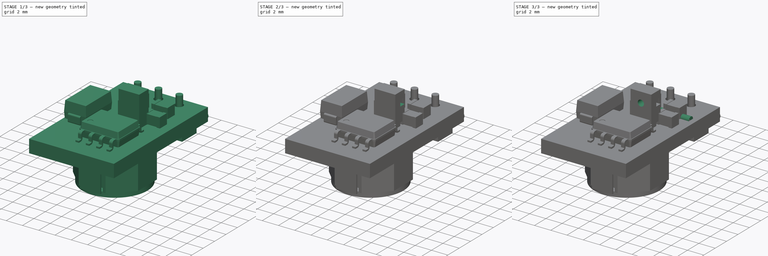
[diagram: build sequence overview — one tinted view per stage of 3, left to right]
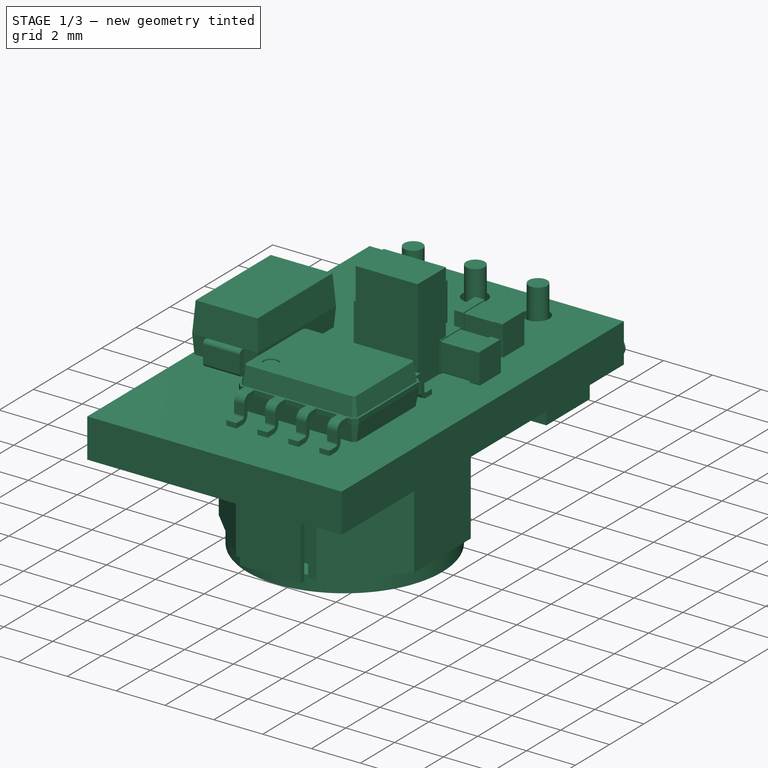
[diagram: stage 1 of 3 — iso view after this stage's code; geometry added in this stage tinted green]
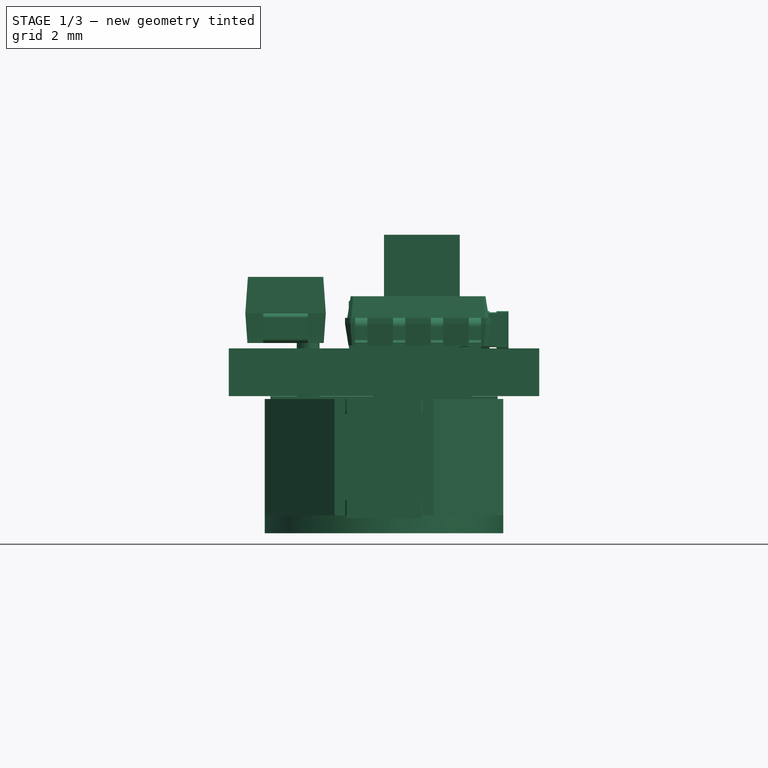
[diagram: stage 1 of 3 — front view after this stage's code; geometry added in this stage tinted green]
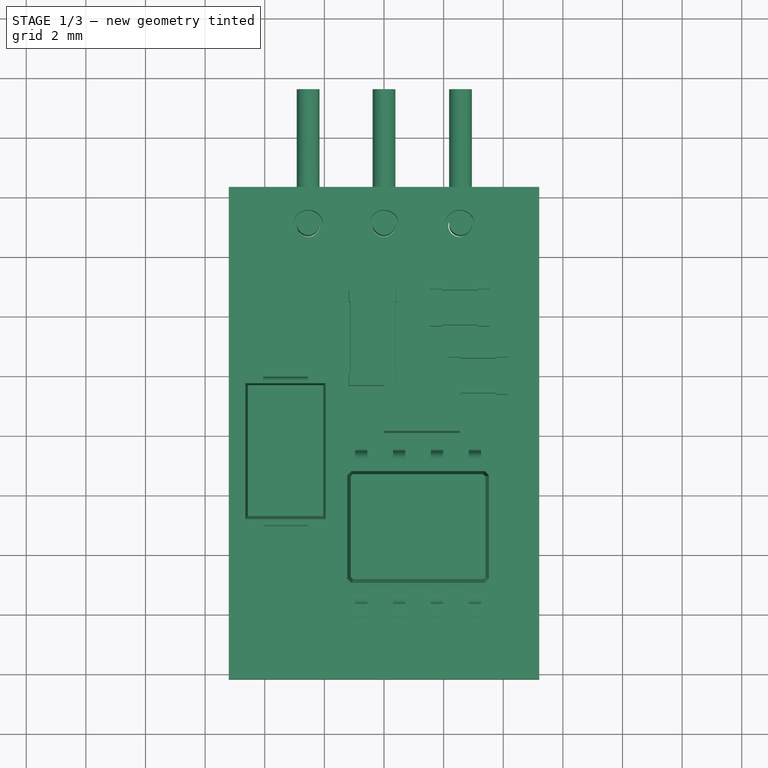
[diagram: stage 1 of 3 — top view after this stage's code; geometry added in this stage tinted green]
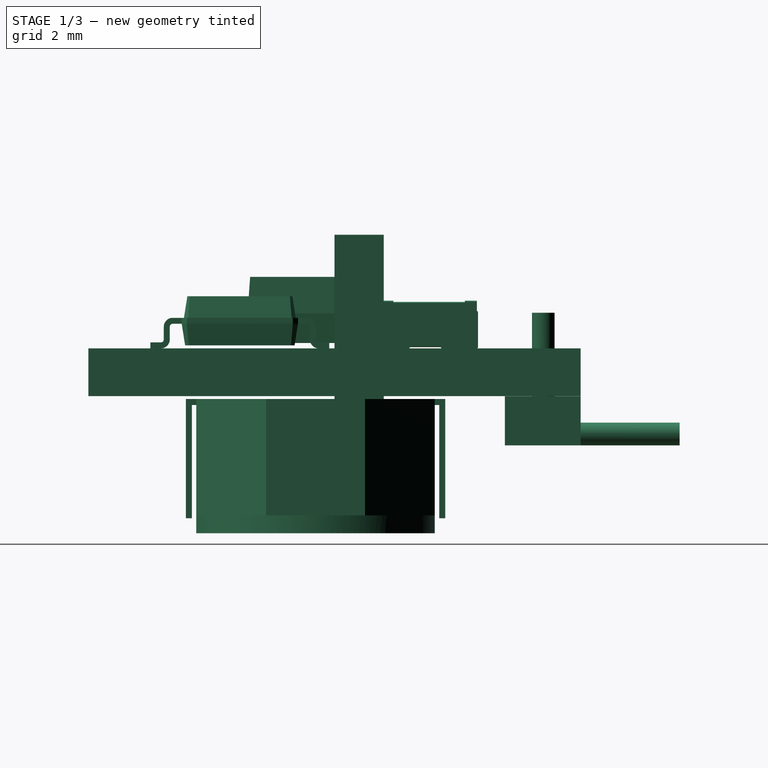
[diagram: stage 1 of 3 — right view after this stage's code; geometry added in this stage tinted green]
FCSTD DOCUMENT  (FreeCAD 0.17R13528 (Git))
Label: OKI_78SR_vertical
License: All rights reserved
LicenseURL: http://en.wikipedia.org/wiki/All_rights_reserved
objects: Part::Feature×13, Sketcher::SketchObject×6, App::Part×5, PartDesign::Body×2, PartDesign::Pocket×2, PartDesign::AdditivePipe×1, PartDesign::Pad×1, Part::MultiFuse×1
note: 30 computed .brp shape members not serialized (recipe doc carries the construction recipe); baked Part::Feature solids carry a one-line shape summary decoded from their .brp

FEATURE [PartDesign::Body] Body
  Group = -> [Sketch,Sketch001,AdditivePipe]
  Origin = -> Origin005
  Tip = -> AdditivePipe
FEATURE [Sketcher::SketchObject] Sketch002
  MapMode = 5
  Placement = pos=(0,0,0) rot=(0.57735,0.57735,0.57735;2.0944rad)
  Support = -> [YZ_Plane006]
  sketch-geometry (4):
    g0: LineSegment StartX=0 StartY=3.81 StartZ=0 EndX=1.651 EndY=3.81 EndZ=0
    g1: LineSegment StartX=1.651 StartY=3.81 StartZ=0 EndX=1.651 EndY=-3.81 EndZ=0
    g2: LineSegment StartX=1.651 StartY=-3.81 StartZ=0 EndX=0 EndY=-3.81 EndZ=0
    g3: LineSegment StartX=0 StartY=-3.81 StartZ=0 EndX=0 EndY=3.81 EndZ=0
  constraints (12):
    c: Coincident(g0,g1)
    c: Coincident(g1,g2)
    c: Coincident(g2,g3)
    c: Coincident(g3,g0)
    c: Horizontal(g0)
    c: Horizontal(g2)
    c: Vertical(g1)
    c: Vertical(g3)
    c: PointOnObject(g0,g-2)
    c: DistanceY(g3,g3) = 7.62
    c: DistanceX(g0,g0) = 1.651
    c: Symmetric(g0,g2,g-1)
FEATURE [PartDesign::Pad] Pad
  Length = 2.54
  Length2 = 100
  Placement = pos=(0,0,0) rot=(0.57735,0.57735,0.57735;2.0944rad)
  Profile = -> Sketch002
  Refine = true
  Type = 0
FEATURE [PartDesign::Body] Body001
  Group = -> [Sketch002,Pad,Sketch003,Pocket,Sketch004,Pocket001]
  Origin = -> Origin006
  Tip = -> Pocket001
FEATURE [Part::Feature] Shape163  label="Pocket002.copy"
  Placement = pos=(0,6.16,0) rot=(0,0,1;0rad)
  shape: bbox 7.62 x 2.54 x 1.651 mm, 24 faces (baked)
FEATURE [Part::MultiFuse] Pocket002_copy_mp_cp  label="Pocket002.copy_fd"
  Refine = true
  Shapes = -> [Shape163,Shape158,Shape154,Shape129,Shape,Shape006,Shape005,Shape004,Shape003,Shape002,Pcb]
FEATURE [Part::Feature] Shape177  label="Converter_DCDC_muRata_OKI-78SR_vertical"
  shape: bbox 10.41 x 8.6 x 19.83 mm, 383 faces, 6 solids (baked)
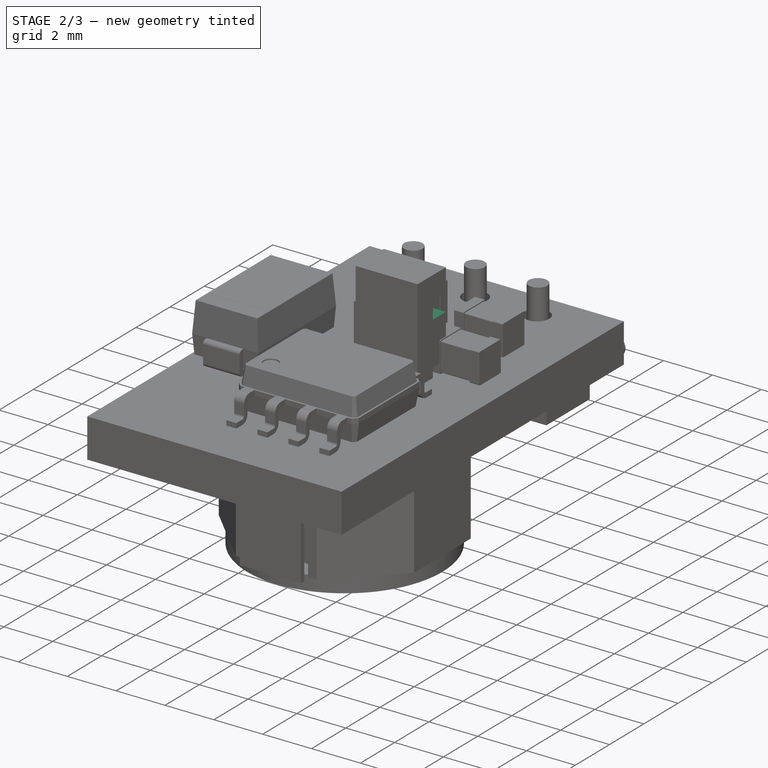
[diagram: stage 2 of 3 — iso view after this stage's code; geometry added in this stage tinted green]
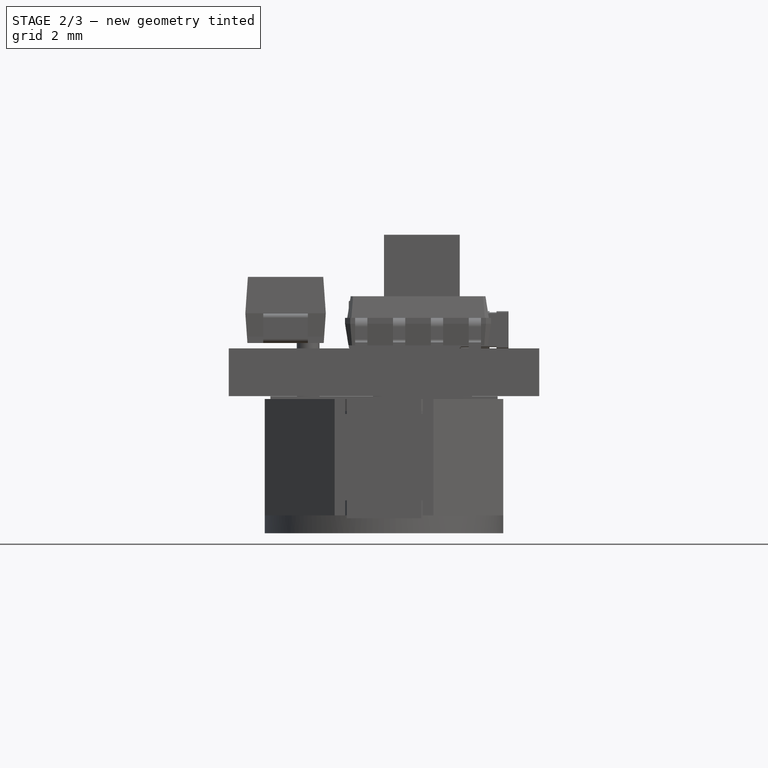
[diagram: stage 2 of 3 — front view after this stage's code; geometry added in this stage tinted green]
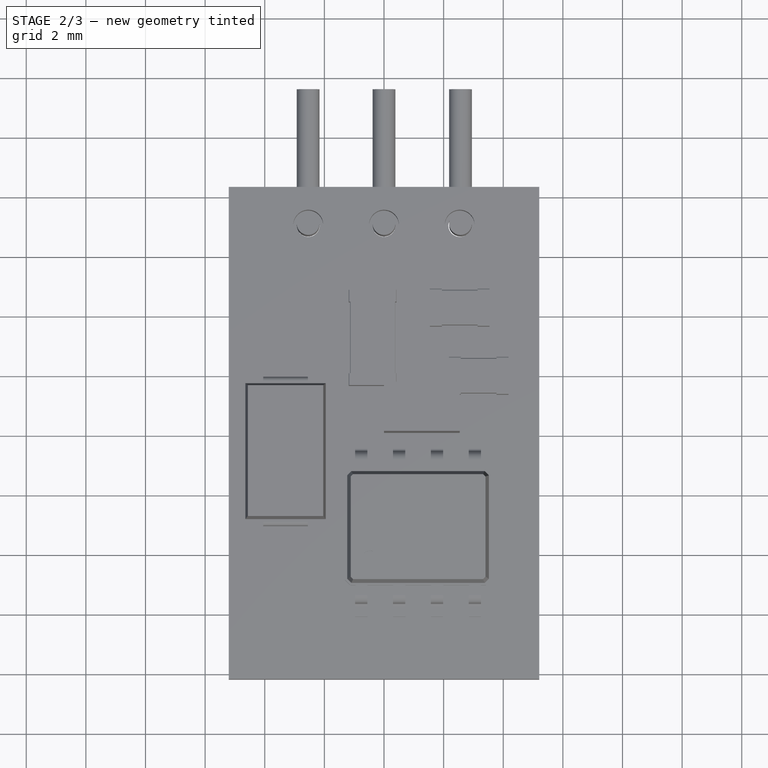
[diagram: stage 2 of 3 — top view after this stage's code; geometry added in this stage tinted green]
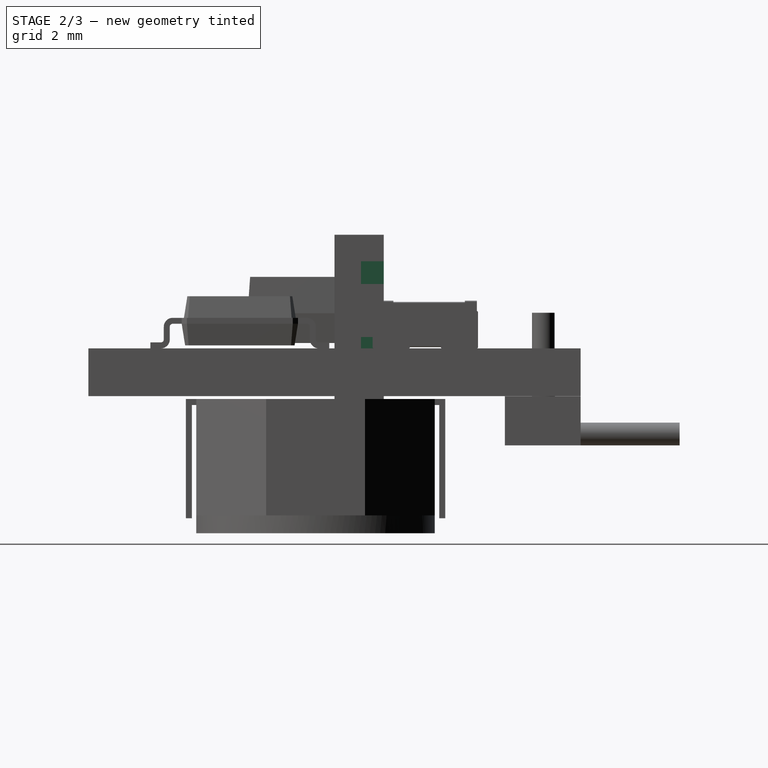
[diagram: stage 2 of 3 — right view after this stage's code; geometry added in this stage tinted green]
FEATURE [Sketcher::SketchObject] Sketch003
  ExternalGeometry = -> [Pad]
  MapMode = 5
  Placement = pos=(2.54,0,0) rot=(0.57735,0.57735,0.57735;2.0944rad)
  Support = -> [Pad]
  sketch-geometry (12):
    g0: LineSegment StartX=1.651 StartY=2.921 StartZ=0 EndX=0.889019 EndY=2.921 EndZ=0
    g1: LineSegment StartX=0.889019 StartY=2.921 StartZ=0 EndX=0.889019 EndY=2.159 EndZ=0
    g2: LineSegment StartX=0.889019 StartY=2.159 StartZ=0 EndX=1.651 EndY=2.159 EndZ=0
    g3: LineSegment StartX=1.651 StartY=2.159 StartZ=0 EndX=1.651 EndY=2.921 EndZ=0
    g4: LineSegment StartX=1.651 StartY=0.381 StartZ=0 EndX=0.889016 EndY=0.381 EndZ=0
    g5: LineSegment StartX=0.889016 StartY=0.381 StartZ=0 EndX=0.889016 EndY=-0.381 EndZ=0
    g6: LineSegment StartX=0.889016 StartY=-0.381 StartZ=0 EndX=1.651 EndY=-0.381 EndZ=0
    g7: LineSegment StartX=1.651 StartY=-0.381 StartZ=0 EndX=1.651 EndY=0.381 EndZ=0
    g8: LineSegment StartX=1.651 StartY=-2.159 StartZ=0 EndX=0.889007 EndY=-2.159 EndZ=0
    g9: LineSegment StartX=0.889007 StartY=-2.159 StartZ=0 EndX=0.889007 EndY=-2.921 EndZ=0
    g10: LineSegment StartX=0.889007 StartY=-2.921 StartZ=0 EndX=1.651 EndY=-2.921 EndZ=0
    g11: LineSegment StartX=1.651 StartY=-2.921 StartZ=0 EndX=1.651 EndY=-2.159 EndZ=0
  constraints (37):
    c: Coincident(g0,g1)
    c: Coincident(g1,g2)
    c: Coincident(g2,g3)
    c: Coincident(g3,g0)
    c: Horizontal(g0)
    c: Horizontal(g2)
    c: Vertical(g1)
    c: Vertical(g3)
    c: PointOnObject(g0,g-3)
    c: Coincident(g4,g5)
    c: Coincident(g5,g6)
    c: Coincident(g6,g7)
    c: Coincident(g7,g4)
    c: Horizontal(g4)
    c: Horizontal(g6)
    c: Vertical(g5)
    c: Vertical(g7)
    c: PointOnObject(g4,g-3)
    c: Coincident(g8,g9)
    c: Coincident(g9,g10)
    c: Coincident(g10,g11)
    c: Coincident(g11,g8)
    c: Horizontal(g8)
    c: Horizontal(g10)
    c: Vertical(g9)
    c: Vertical(g11)
    c: PointOnObject(g8,g-3)
    c: Symmetric(g4,g5,g-1)
    c: Symmetric(g0,g9,g-1)
    c: Symmetric(g1,g8,g-1)
    c: Equal(g5,g9)
    c: Equal(g9,g1)
    c: Equal(g10,g6)
    c: Equal(g6,g2)
    c: DistanceX(g10,g10) = 0.762
    c: DistanceY(g9,g9) = 0.762
    c: DistanceY(g4,g0) = 2.54
FEATURE [PartDesign::Pocket] Pocket
  BaseFeature = -> Pad
  Length = 1.778
  Length2 = 100
  Placement = pos=(0,0,0) rot=(0.57735,0.57735,0.57735;2.0944rad)
  Profile = -> Sketch003
  Refine = true
  Type = 0
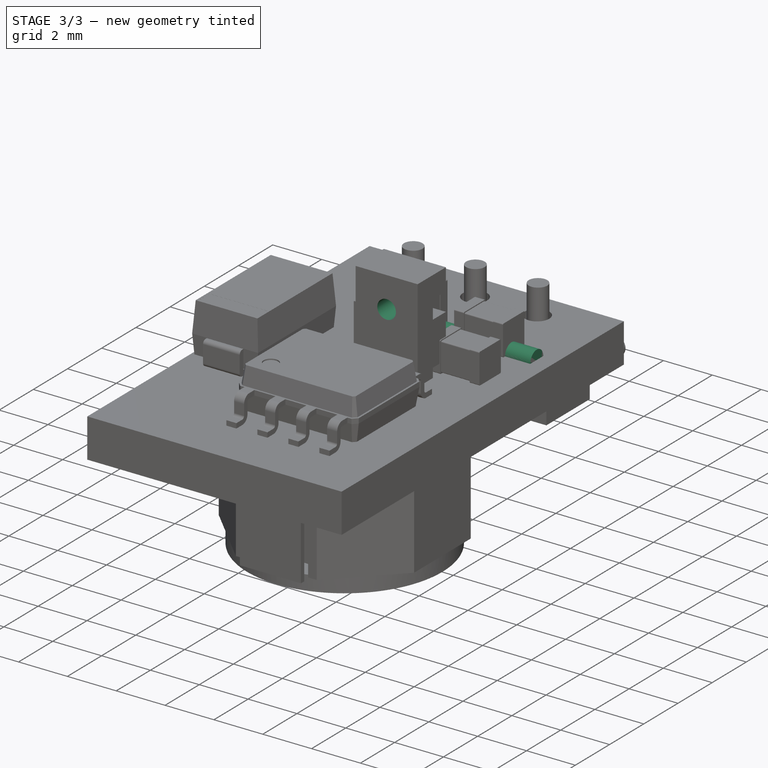
[diagram: stage 3 of 3 — iso view after this stage's code; geometry added in this stage tinted green]
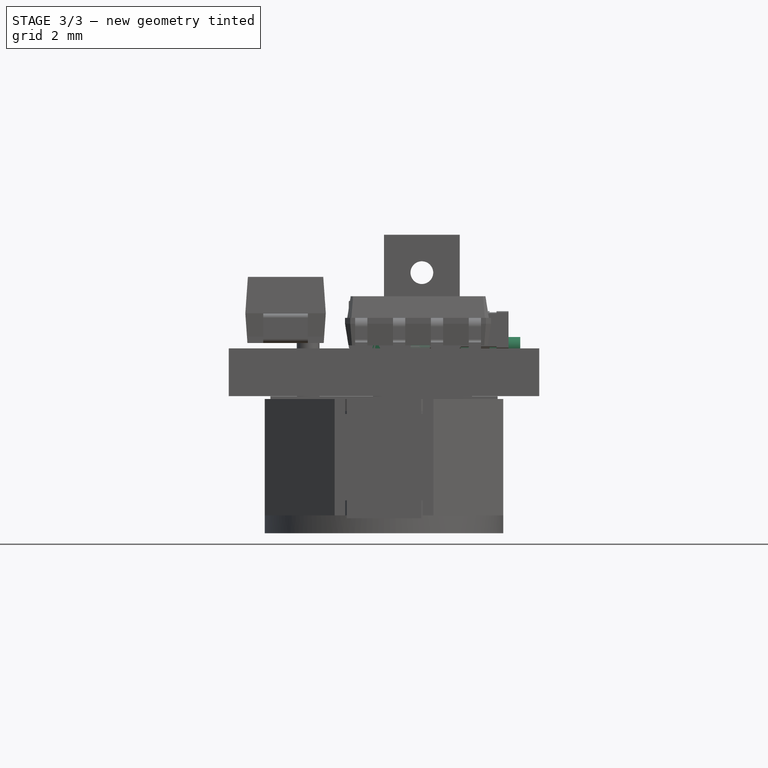
[diagram: stage 3 of 3 — front view after this stage's code; geometry added in this stage tinted green]
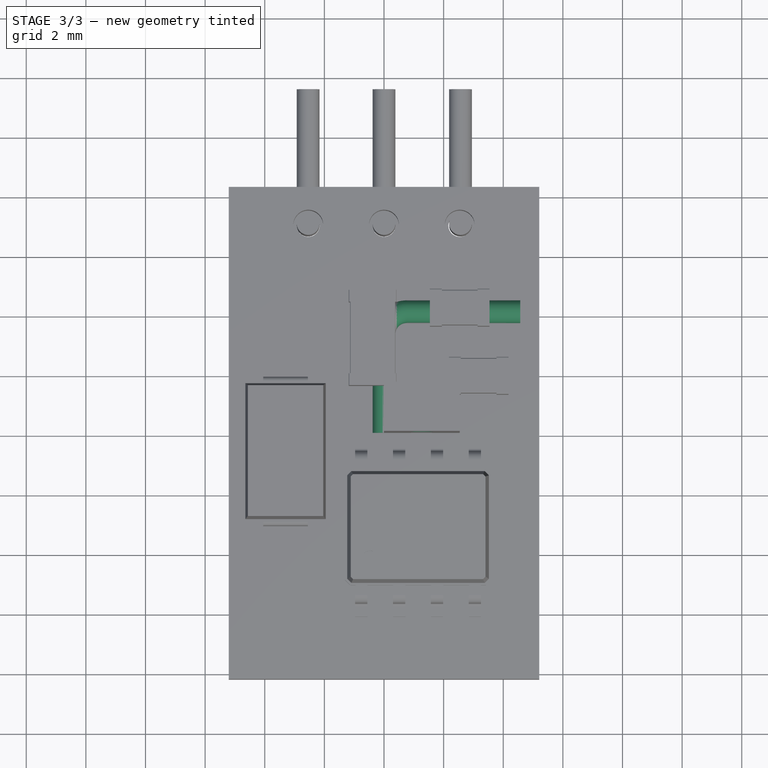
[diagram: stage 3 of 3 — top view after this stage's code; geometry added in this stage tinted green]
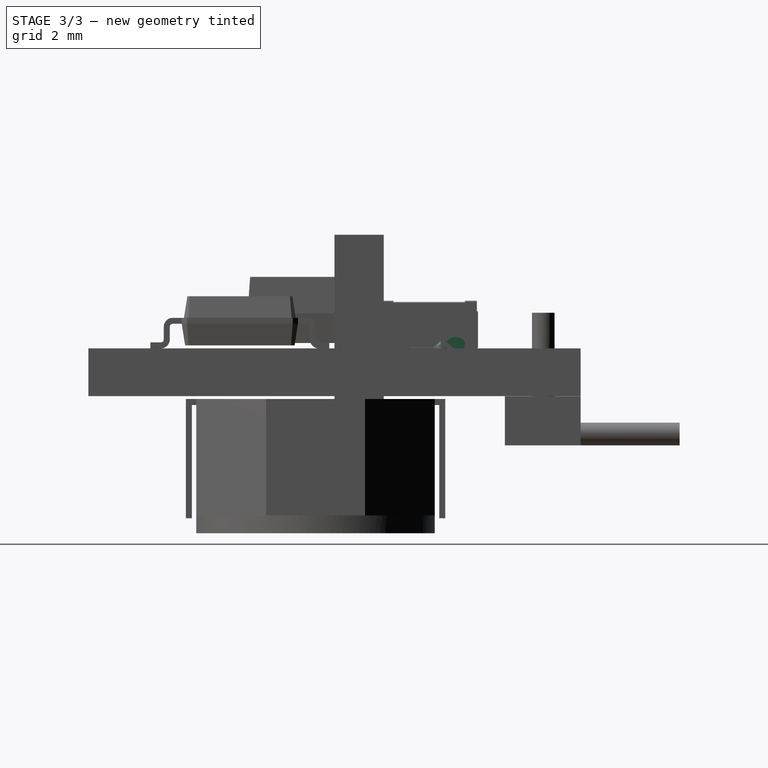
[diagram: stage 3 of 3 — right view after this stage's code; geometry added in this stage tinted green]
FEATURE [Part::Feature] Pcb
  Placement = pos=(-78.74,83.185,0) rot=(0,0,1;0rad)
  shape: bbox 10.41 x 16.51 x 1.6 mm, 10 faces (baked)
FEATURE [Sketcher::SketchObject] PCB_Sketch
  sketch-geometry (5):
    g0: LineSegment StartX=5.207 StartY=-8.255 StartZ=0 EndX=5.207 EndY=8.255 EndZ=0
    g1: LineSegment StartX=-5.207 StartY=-8.255 StartZ=0 EndX=5.207 EndY=-8.255 EndZ=0
    g2: LineSegment StartX=-5.207 StartY=8.255 StartZ=0 EndX=-5.207 EndY=-8.255 EndZ=0
    g3: LineSegment StartX=0 StartY=8.255 StartZ=0 EndX=5.207 EndY=8.255 EndZ=0
    g4: LineSegment StartX=0 StartY=8.255 StartZ=0 EndX=-5.207 EndY=8.255 EndZ=0
  constraints (5):
    c: Vertical(g0)
    c: Horizontal(g1)
    c: Vertical(g2)
    c: Horizontal(g3)
    c: Horizontal(g4)
FEATURE [App::Part] Board_Geoms
  Group = -> [Pcb,PCB_Sketch]
  Origin = -> Origin
FEATURE [Part::Feature] Shape  label="L_CDRH8D43_8x8mm_H4.5mm_"
  Placement = pos=(0,-0.635,-1.7) rot=(0.707107,0.707107,0;3.14159rad)
  shape: bbox 8 x 8.7 x 4.5 mm, 58 faces, 3 solids (baked)
FEATURE [App::Part] Bot
  Group = -> [Shape]
  License = CC BY 3.0
  LicenseURL = http://creativecommons.org/licenses/by/3.0/
  Origin = -> Origin004
FEATURE [Part::Feature] Shape002  label="C_0805_2012Metric_"
  Placement = pos=(2.54,4.191,0) rot=(0,0,1;0rad)
  shape: bbox 2 x 1.25 x 1.25 mm, 28 faces (baked)
FEATURE [Part::Feature] Shape003  label="C_0805_2012Metric_001"
  Placement = pos=(3.175,1.905,0) rot=(0,0,1;0rad)
  shape: bbox 2 x 1.25 x 1.25 mm, 28 faces (baked)
FEATURE [Part::Feature] Shape004  label="SOIC_8_39x49mm_P127mm_"
  Placement = pos=(1.143,-3.175,0) rot=(0,0,1;1.5708rad)
  shape: bbox 4.9 x 6 x 1.75 mm, 156 faces (baked)
FEATURE [Part::Feature] Shape005  label="D_SMA_"
  Placement = pos=(-3.302,-0.635,0.18) rot=(0,0,1;1.5708rad)
  shape: bbox 2.7 x 5 x 2.22 mm, 41 faces (baked)
FEATURE [Part::Feature] Shape006  label="C_1206_3216Metric_"
  Placement = pos=(-0.381,3.175,0) rot=(0,0,1;1.5708rad)
  shape: bbox 1.6 x 3.2 x 1.6 mm, 28 faces (baked)
FEATURE [App::Part] Top
  Group = -> [Shape002,Shape003,Shape004,Shape005,Shape006]
  License = CC BY 3.0
  LicenseURL = http://creativecommons.org/licenses/by/3.0/
  Origin = -> Origin003
FEATURE [App::Part] Step_Models
  Group = -> [Top,Bot]
  Origin = -> Origin002
FEATURE [App::Part] Board  label="OKI-78SR_vertical"
  Group = -> [Board_Geoms,Step_Models]
  Origin = -> Origin001
FEATURE [Part::Feature] Shape009  label="PinHeader_1x03_P254mm_Horizontal_"
  shape: bbox 7.62 x 10.36 x 5.54 mm, 85 faces (baked)
FEATURE [Sketcher::SketchObject] Sketch
  MapMode = 5
  Placement = pos=(0,0,0) rot=(1,0,0;1.5708rad)
  Support = -> [XZ_Plane005]
  sketch-geometry (1):
    g0: Circle CenterX=0 CenterY=0 CenterZ=0 NormalX=0 NormalY=0 NormalZ=1 AngleXU=0 Radius=0.381
  constraints (2):
    c: Coincident(g0,g-1)
    c: Radius(g0) = 0.381
FEATURE [Sketcher::SketchObject] Sketch001
  MapMode = 5
  Support = -> [XY_Plane005]
  sketch-geometry (4):
    g0: LineSegment StartX=0 StartY=0 StartZ=0 EndX=0 EndY=3.302 EndZ=0
    g1: ArcOfCircle CenterX=0.762 CenterY=3.302 CenterZ=0 NormalX=0 NormalY=0 NormalZ=1 AngleXU=0 Radius=0.762 StartAngle=1.5708 EndAngle=3.14159
    g2: LineSegment StartX=0.762 StartY=4.064 StartZ=0 EndX=4.572 EndY=4.064 EndZ=0
    g3: LineSegment [constr] StartX=0 StartY=3.302 StartZ=0 EndX=0.762 EndY=3.302 EndZ=0
  constraints (12):
    c: Coincident(g0,g-1)
    c: Vertical(g0)
    c: Coincident(g1,g0)
    c: Coincident(g2,g1)
    c: Horizontal(g2)
    c: DistanceY(g-1,g1) = 4.064
    c: DistanceX(g0,g2) = 4.572
    c: Angle(g1) = 1.5708
    c: Radius(g1) = 0.762
    c: Coincident(g3,g0)
    c: Coincident(g3,g1)
    c: Horizontal(g3)
FEATURE [PartDesign::AdditivePipe] AdditivePipe
  AuxilleryCurvelinear = true
  AuxillerySpineTangent = false
  Binormal = (0,0,0)
  Mode = 0
  Placement = pos=(0,0,0) rot=(1,0,0;1.5708rad)
  Profile = -> Sketch
  Refine = true
  Spine = -> Sketch001
  SpineTangent = false
  Transformation = 0
  Transition = 0
FEATURE [Sketcher::SketchObject] Sketch004
  MapMode = 5
  Placement = pos=(0,0,0) rot=(-0.57735,-0.57735,0.57735;4.18879rad)
  Support = -> [Pocket]
  sketch-geometry (5):
    g0: Circle CenterX=0 CenterY=1.27 CenterZ=0 NormalX=0 NormalY=0 NormalZ=1 AngleXU=0 Radius=0.381
    g1: Circle CenterX=-2.54 CenterY=1.27 CenterZ=0 NormalX=0 NormalY=0 NormalZ=1 AngleXU=0 Radius=0.381
    g2: Circle CenterX=2.54 CenterY=1.27 CenterZ=0 NormalX=0 NormalY=0 NormalZ=1 AngleXU=0 Radius=0.381
    g3: LineSegment [constr] StartX=-2.54 StartY=1.27 StartZ=0 EndX=0 EndY=1.27 EndZ=0
    g4: LineSegment [constr] StartX=0 StartY=1.27 StartZ=0 EndX=2.54 EndY=1.27 EndZ=0
  constraints (13):
    c: PointOnObject(g0,g-2)
    c: Coincident(g3,g1)
    c: Coincident(g3,g0)
    c: Coincident(g4,g0)
    c: Coincident(g4,g2)
    c: Horizontal(g3)
    c: Horizontal(g4)
    c: Symmetric(g1,g2,g0)
    c: DistanceX(g4,g4) = 2.54
    c: DistanceY(g-1,g0) = 1.27
    c: Radius(g2) = 0.381
    c: Equal(g2,g0)
    c: Equal(g0,g1)
FEATURE [Part::Feature] Shape129  label="AdditivePipe.copy001"
  Placement = pos=(0,0,0.931) rot=(0,0,1;0rad)
  shape: bbox 0.762 x 5.047 x 4.539 mm, 5 faces (baked)
FEATURE [Part::Feature] Shape154  label="AdditivePipe.copy002"
  Placement = pos=(0,9.3,1.51) rot=(0,0,1;0rad)
  shape: bbox 0.762 x 5.047 x 4.539 mm, 5 faces (baked)
FEATURE [Part::Feature] Shape158  label="AdditivePipe.copy"
  Placement = pos=(-5.91,9.3,-1.03) rot=(0,0,1;0rad)
  shape: bbox 0.762 x 5.047 x 4.539 mm, 5 faces (baked)
FEATURE [PartDesign::Pocket] Pocket001  label="Pocket002"
  BaseFeature = -> Pocket
  Length = 0
  Length2 = 100
  Placement = pos=(0,0,0) rot=(0.57735,0.57735,0.57735;2.0944rad)
  Profile = -> Sketch004
  Refine = true
  Type = 1
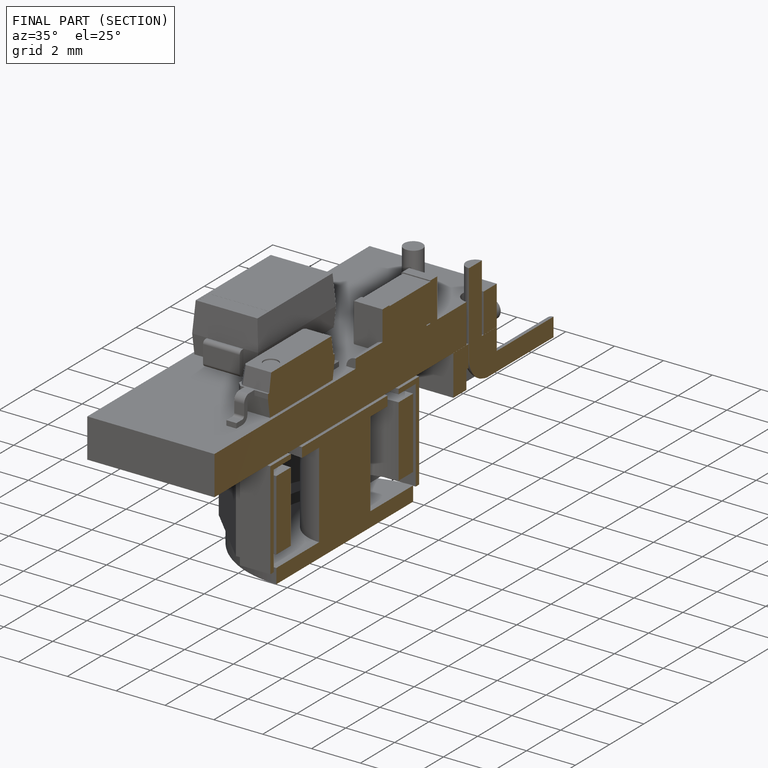
[diagram: finished part — half-section view (interior)]
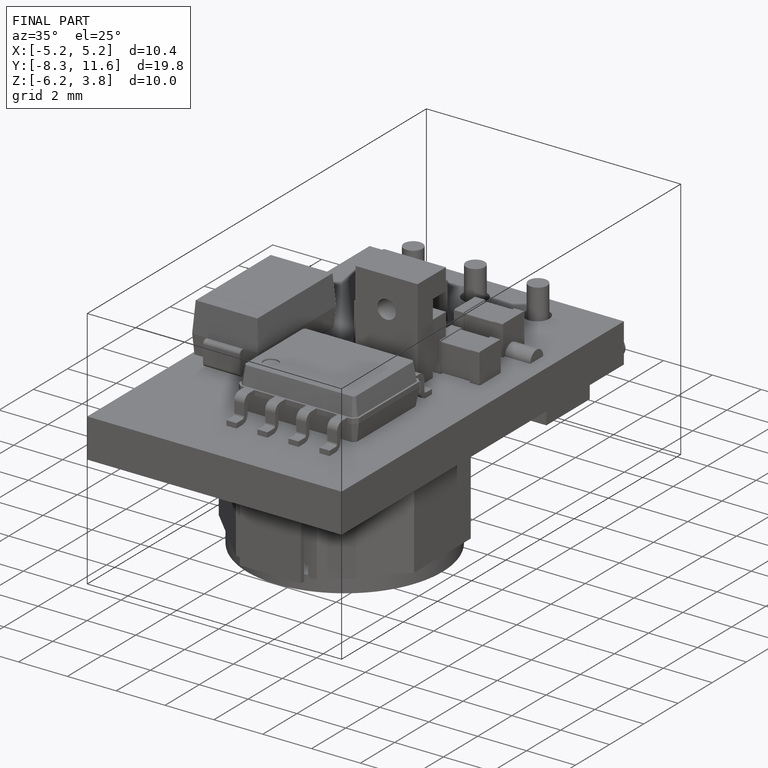
[diagram: finished part — iso view with bounding-box wireframe]
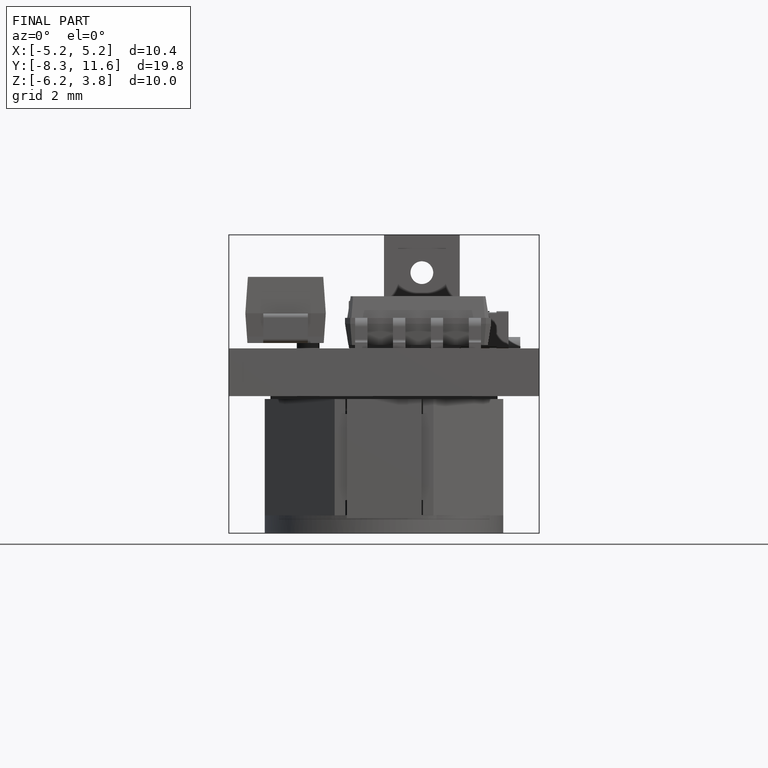
[diagram: finished part — front view with bounding-box wireframe]
